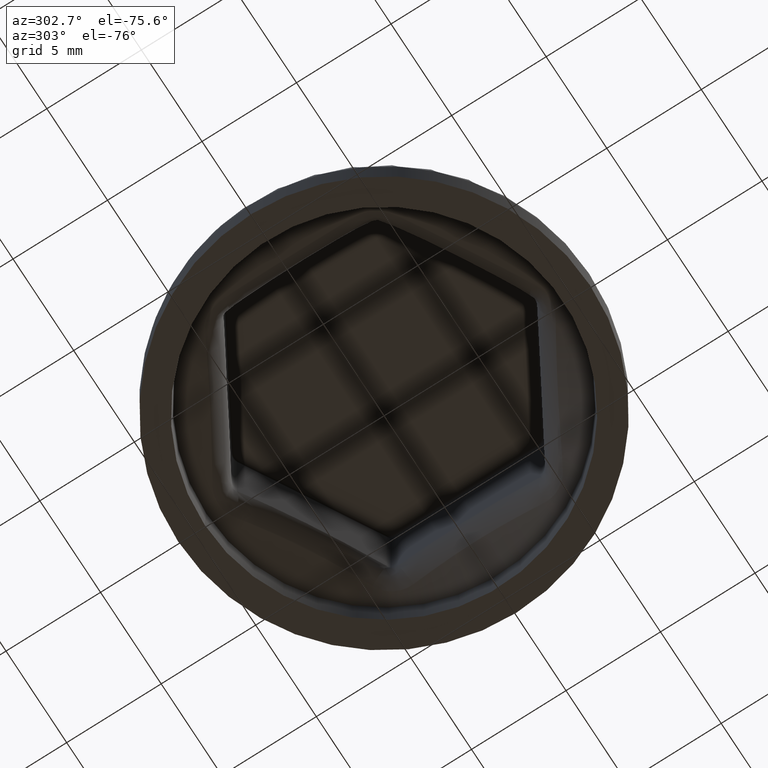
[diagram: clean part render]
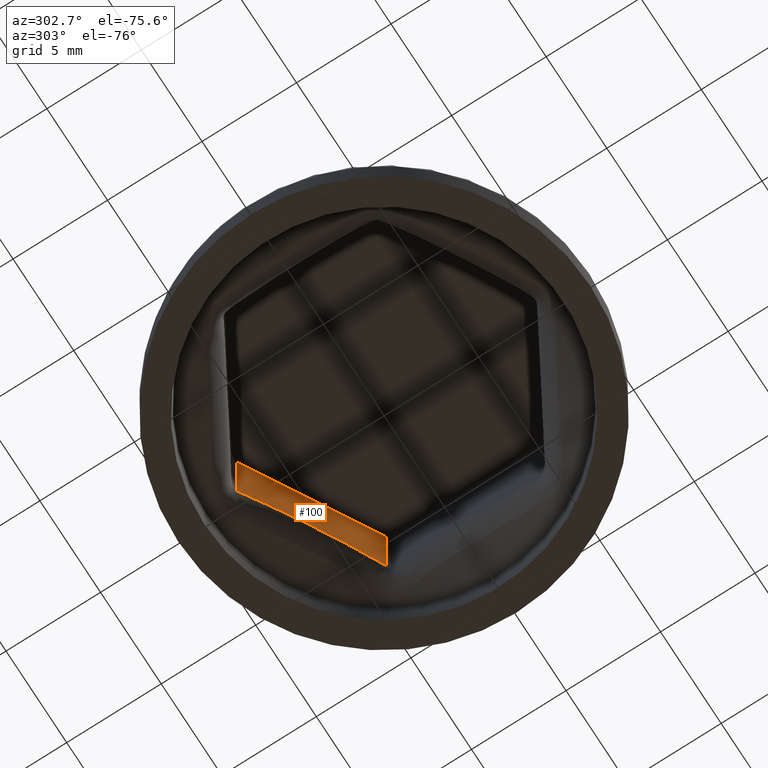
[diagram: same view with one face highlighted and labeled with its STEP entity id]
A machine part, auxiliary view. The second image highlights one B-rep face of the part: STEP entity #100.
In plain terms, the highlighted planar face has unit normal (-0.5, -0.866, 0).
Its self-contained STEP definition (entity closure, byte-faithful):
#100 = ADVANCED_FACE( '', ( #206 ), #207, .T. );
#206 = FACE_OUTER_BOUND( '', #1380, .T. );
#207 = PLANE( '', #1381 );
#1380 = EDGE_LOOP( '', ( #2999, #3000, #3001, #3002 ) );
#1381 = AXIS2_PLACEMENT_3D( '', #3003, #3004, #3005 );
#2999 = ORIENTED_EDGE( '', *, *, #3420, .F. );
#3000 = ORIENTED_EDGE( '', *, *, #3418, .F. );
#3001 = ORIENTED_EDGE( '', *, *, #3417, .F. );
#3002 = ORIENTED_EDGE( '', *, *, #3422, .F. );
#3003 = CARTESIAN_POINT( '', ( 7.00000000000000, 4.04145188432738, 9.00000000000000 ) );
#3004 = DIRECTION( '', ( -0.500000000000000, -0.866025403784439, 0.000000000000000 ) );
#3005 = DIRECTION( '', ( 0.866025403784439, -0.500000000000000, 0.000000000000000 ) );
#3417 = EDGE_CURVE( '', #3578, #3627, #3639, .T. );
#3418 = EDGE_CURVE( '', #3627, #3634, #3640, .T. );
#3420 = EDGE_CURVE( '', #3634, #3642, #3643, .F. );
#3422 = EDGE_CURVE( '', #3642, #3578, #3645, .F. );
#3578 = VERTEX_POINT( '', #4003 );
#3627 = VERTEX_POINT( '', #4426 );
#3634 = VERTEX_POINT( '', #4504 );
#3639 = LINE( '', #4578, #4579 );
#3640 = B_SPLINE_CURVE_WITH_KNOTS( '', 3, ( #4580, #4581, #4582, #4583, #4584, #4585, #4586, #4587, #4588, #4589, #4590, #4591, #4592, #4593, #4594, #4595, #4596, #4597, #4598, #4599, #4600, #4601, #4602, #4603 ), .UNSPECIFIED., .F., .F., ( 4, 2, 2, 2, 1, 1, 1, 2, 2, 2, 1, 2, 2, 4 ), ( 0.000000000000000, 0.000940884050545962, 0.00188176810109192, 0.00282265215163788, 0.00329309417691086, 0.00376353620218385, 0.00423397822745683, 0.00470442025272981, 0.00493964126536630, 0.00505725177168454, 0.00517486227800279, 0.00564530430327577, 0.00658618835382173, 0.00752707240436768 ), .UNSPECIFIED. );
#3642 = VERTEX_POINT( '', #4628 );
#3643 = LINE( '', #4629, #4630 );
#3645 = LINE( '', #4632, #4633 );
#4003 = CARTESIAN_POINT( '', ( 6.75000000000000, 4.18578945162479, 8.80000000000000 ) );
#4426 = CARTESIAN_POINT( '', ( 6.75000000000000, 4.18578945162479, 3.59465102480765 ) );
#4504 = CARTESIAN_POINT( '', ( 0.250000000000001, 7.93856620135735, 3.59465102480765 ) );
#4578 = CARTESIAN_POINT( '', ( 6.75000000000000, 4.18578945162479, 9.00000000000000 ) );
#4579 = VECTOR( '', #5494, 1000.00000000000 );
#4580 = CARTESIAN_POINT( '', ( 6.75000000000000, 4.18578945162479, 3.59465102480765 ) );
#4581 = CARTESIAN_POINT( '', ( 6.48252305999486, 4.34021733493877, 3.66667192771039 ) );
#4582 = CARTESIAN_POINT( '', ( 6.21453816359587, 4.49493848701348, 3.73138558950667 ) );
#4583 = CARTESIAN_POINT( '', ( 5.67742031995164, 4.80504361862803, 3.84429754989597 ) );
#4584 = CARTESIAN_POINT( '', ( 5.40828689334750, 4.96042787492586, 3.89248895263888 ) );
#4585 = CARTESIAN_POINT( '', ( 4.86875260649627, 5.27192814067645, 3.97063900561408 ) );
#4586 = CARTESIAN_POINT( '', ( 4.59835123850258, 5.42804444327685, 4.00059035162306 ) );
#4587 = CARTESIAN_POINT( '', ( 4.19173060042597, 5.66280697812843, 4.03086443150913 ) );
#4588 = CARTESIAN_POINT( '', ( 3.92031120439970, 5.81951103948749, 4.04617086630694 ) );
#4589 = CARTESIAN_POINT( '', ( 3.51214301169408, 6.05516705542072, 4.05418249426515 ) );
#4590 = CARTESIAN_POINT( '', ( 3.10292255208156, 6.29143059793591, 4.04705666536683 ) );
#4591 = CARTESIAN_POINT( '', ( 2.82940502857958, 6.44934601375786, 4.03218034526164 ) );
#4592 = CARTESIAN_POINT( '', ( 2.62400447930358, 6.56793407617406, 4.01724823655409 ) );
#4593 = CARTESIAN_POINT( '', ( 2.55549392037795, 6.60748866581210, 4.01164208580321 ) );
#4594 = CARTESIAN_POINT( '', ( 2.45266293549488, 6.66685816261537, 4.00229569036637 ) );
#4595 = CARTESIAN_POINT( '', ( 2.41836639030648, 6.68665928221217, 3.99902317333208 ) );
#4596 = CARTESIAN_POINT( '', ( 2.34979328952062, 6.72624998041006, 3.99217125257672 ) );
#4597 = CARTESIAN_POINT( '', ( 2.17846728936501, 6.82516509271908, 3.97428062113128 ) );
#4598 = CARTESIAN_POINT( '', ( 2.00767002745788, 6.92377493785801, 3.95262162556160 ) );
#4599 = CARTESIAN_POINT( '', ( 1.59872648453685, 7.15987860244683, 3.89372757559315 ) );
#4600 = CARTESIAN_POINT( '', ( 1.32739152657460, 7.31653391346689, 3.84524191996013 ) );
#4601 = CARTESIAN_POINT( '', ( 0.787035027640726, 7.62850888358472, 3.73178268179069 ) );
#4602 = CARTESIAN_POINT( '', ( 0.518012499812508, 7.78382911244442, 3.66681613266834 ) );
#4603 = CARTESIAN_POINT( '', ( 0.250000000000001, 7.93856620135735, 3.59465102480765 ) );
#4628 = CARTESIAN_POINT( '', ( 0.250000000000001, 7.93856620135735, 8.80000000000000 ) );
#4629 = CARTESIAN_POINT( '', ( 0.250000000000001, 7.93856620135735, 9.00000000000000 ) );
#4630 = VECTOR( '', #5495, 1000.00000000000 );
#4632 = CARTESIAN_POINT( '', ( 7.00000000000000, 4.04145188432738, 8.80000000000000 ) );
#4633 = VECTOR( '', #5499, 1000.00000000000 );
#5494 = DIRECTION( '', ( 0.000000000000000, 0.000000000000000, -1.00000000000000 ) );
#5495 = DIRECTION( '', ( 0.000000000000000, 0.000000000000000, -1.00000000000000 ) );
#5499 = DIRECTION( '', ( -0.866025403784439, 0.500000000000000, 0.000000000000000 ) );